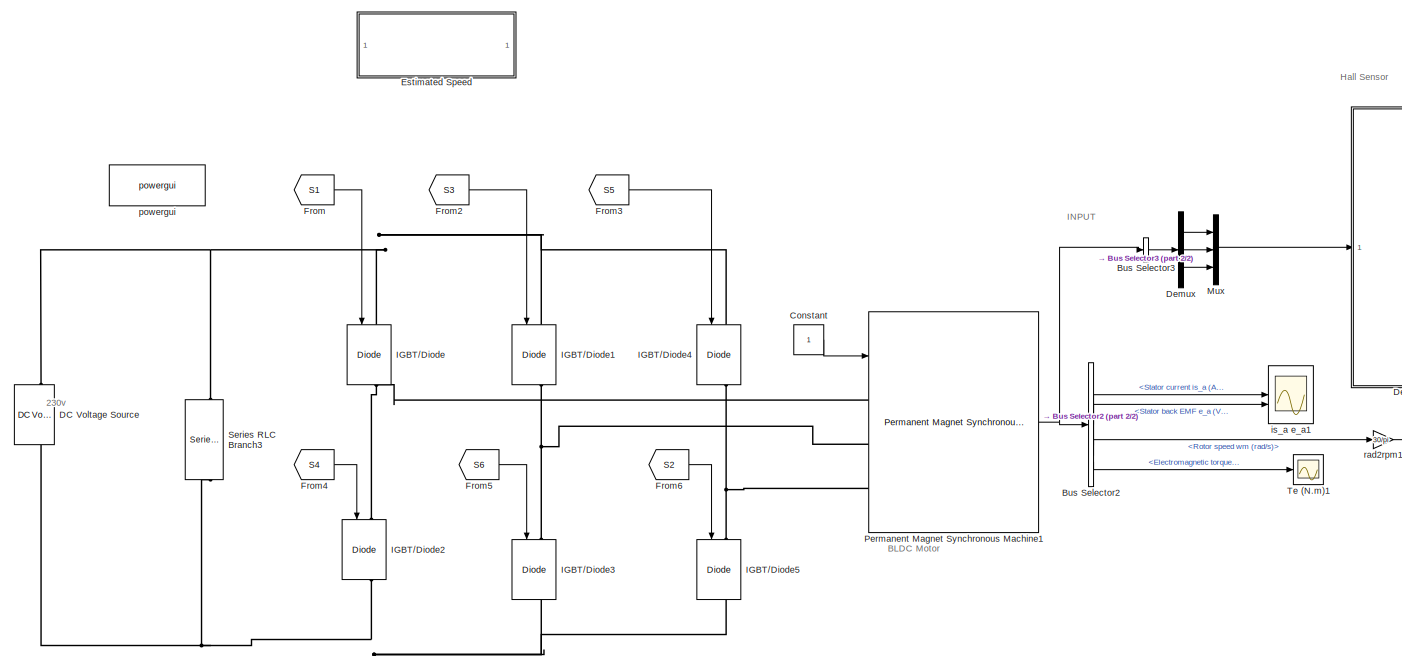
[diagram: root canvas - part 1/2, most of the canvas]
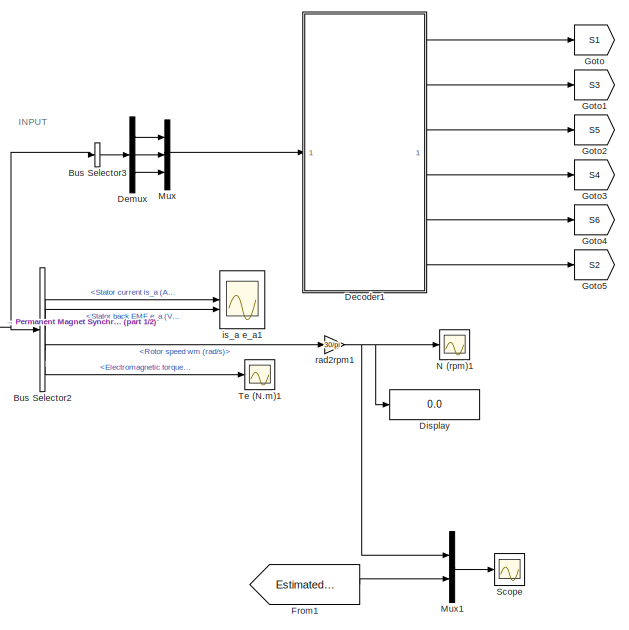
[diagram: root canvas - part 2/2, right side, full height]
MODEL slx_7018c63a93fe
KIND model
CONFIG AbsTol = auto
CONFIG EnableMultiTasking = off
CONFIG FixedStep = auto
CONFIG MaxStep = auto
CONFIG MinStep = auto
CONFIG RelTol = 1e-3
CONFIG SampleTimeConstraint = Unconstrained
CONFIG SolverName = VariableStepAuto
CONFIG StartTime = 0.0
CONFIG StopTime = 1
BLOCK [BusSelector] Bus Selector2
  OutputSignals = Stator current is_a (A),Stator back EMF e_a (V),Rotor speed wm (rad/s),Electromagnetic torque Te (N*m)
BLOCK [BusSelector] Bus Selector3
  OutputAsBus = on
  OutputSignals = Hall effect signal h_a,Hall effect signal h_b,Hall effect signal h_c
BLOCK [Constant] Constant
BLOCK [Reference] DC Voltage Source  REF=spsDCVoltageSourceLib/DC Voltage Source
  LibrarySourceBlock = sps_lib/Sources/DC Voltage Source
  SourceBlock = spsDCVoltageSourceLib/DC Voltage Source
  SourceType = DC Voltage Source
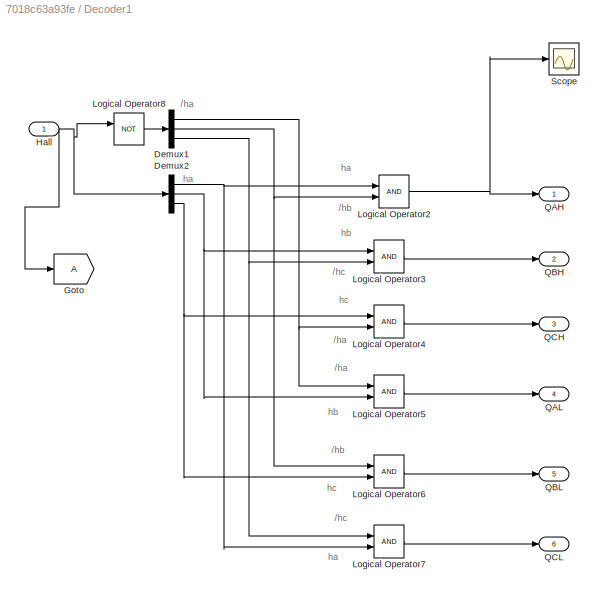
BLOCK [SubSystem] Decoder1
BLOCK [Demux] Decoder1/Demux1
  Outputs = 3
BLOCK [Demux] Decoder1/Demux2
  Outputs = 3
BLOCK [Goto] Decoder1/Goto
  TagVisibility = global
BLOCK [Inport] Decoder1/Hall 
BLOCK [Logic] Decoder1/Logical Operator2
  AllPortsSameDT = off
  OutDataTypeStr = boolean
BLOCK [Logic] Decoder1/Logical Operator3
  AllPortsSameDT = off
  OutDataTypeStr = boolean
BLOCK [Logic] Decoder1/Logical Operator4
  AllPortsSameDT = off
  OutDataTypeStr = boolean
BLOCK [Logic] Decoder1/Logical Operator5
  AllPortsSameDT = off
  OutDataTypeStr = boolean
BLOCK [Logic] Decoder1/Logical Operator6
  AllPortsSameDT = off
  OutDataTypeStr = boolean
BLOCK [Logic] Decoder1/Logical Operator7
  AllPortsSameDT = off
  OutDataTypeStr = boolean
BLOCK [Logic] Decoder1/Logical Operator8
  AllPortsSameDT = off
  Operator = NOT
  OutDataTypeStr = boolean
BLOCK [Outport] Decoder1/QAH
  VectorParamsAs1DForOutWhenUnconnected = off
BLOCK [Outport] Decoder1/QAL
  Port = 4
  VectorParamsAs1DForOutWhenUnconnected = off
BLOCK [Outport] Decoder1/QBH
  Port = 2
  VectorParamsAs1DForOutWhenUnconnected = off
BLOCK [Outport] Decoder1/QBL
  Port = 5
  VectorParamsAs1DForOutWhenUnconnected = off
BLOCK [Outport] Decoder1/QCH
  Port = 3
  VectorParamsAs1DForOutWhenUnconnected = off
BLOCK [Outport] Decoder1/QCL
  Port = 6
  VectorParamsAs1DForOutWhenUnconnected = off
BLOCK [Scope] Decoder1/Scope
  Floating = off
  NumInputPorts = 1
  ScopeSpecificationString = Simulink.scopes.TimeScopeBlockCfg('CurrentConfiguration', extmgr.ConfigurationSet(extmgr.Configuration('Core','General UI',true),extmgr.Configuration('Core','Source UI',true),extmgr.Configuration('Sources','WiredSimulink',true,'DataLoggingVariableName','ScopeData1'),extmgr.Configuration('Visuals','Time Domain',true,'SerializedDisplays',{struct('MinYLimReal','-10.00000','MaxYLimReal','10.00000','YL...<+1428ch>
BLOCK [Demux] Demux
  Outputs = 3
BLOCK [Display] Display
  Decimation = 1
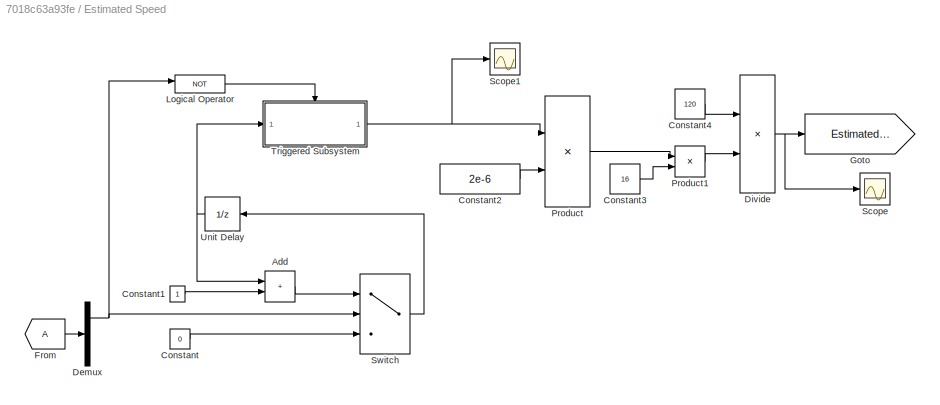
BLOCK [SubSystem] Estimated Speed
BLOCK [Sum] Estimated Speed/Add
  IconShape = rectangular
BLOCK [Constant] Estimated Speed/Constant
  Value = 0
BLOCK [Constant] Estimated Speed/Constant1
BLOCK [Constant] Estimated Speed/Constant2
  Value = 2e-6
BLOCK [Constant] Estimated Speed/Constant3
  Value = 16
BLOCK [Constant] Estimated Speed/Constant4
  Value = 120
BLOCK [Demux] Estimated Speed/Demux
  Outputs = 3
BLOCK [Product] Estimated Speed/Divide
  Inputs = */
BLOCK [From] Estimated Speed/From
  TagVisibility = global
BLOCK [Goto] Estimated Speed/Goto
  GotoTag = Estimated_speed
  TagVisibility = global
BLOCK [Logic] Estimated Speed/Logical Operator
  AllPortsSameDT = off
  Operator = NOT
  OutDataTypeStr = boolean
BLOCK [Product] Estimated Speed/Product
BLOCK [Product] Estimated Speed/Product1
BLOCK [Scope] Estimated Speed/Scope
  Floating = off
  NumInputPorts = 1
  ScopeSpecificationString = Simulink.scopes.TimeScopeBlockCfg('CurrentConfiguration', extmgr.ConfigurationSet(extmgr.Configuration('Core','General UI',true),extmgr.Configuration('Core','Source UI',true),extmgr.Configuration('Sources','WiredSimulink',true,'DataLoggingVariableName','ScopeData2'),extmgr.Configuration('Visuals','Time Domain',true,'SerializedDisplays',{struct('MinYLimReal','975.69615','MaxYLimReal','1009.85734','...<+1454ch>
BLOCK [Scope] Estimated Speed/Scope1
  Floating = off
  NumInputPorts = 1
  ScopeSpecificationString = Simulink.scopes.TimeScopeBlockCfg('CurrentConfiguration', extmgr.ConfigurationSet(extmgr.Configuration('Core','General UI',true),extmgr.Configuration('Core','Source UI',true),extmgr.Configuration('Sources','WiredSimulink',true,'DataLoggingVariableName','ScopeData3'),extmgr.Configuration('Visuals','Time Domain',true,'SerializedDisplays',{struct('MinYLimReal','-478.75','MaxYLimReal','4308.75','YLabe...<+1432ch>
BLOCK [Switch] Estimated Speed/Switch
  Criteria = u2 > Threshold
  InputSameDT = off
  SaturateOnIntegerOverflow = off
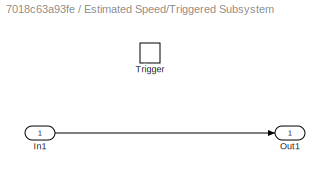
BLOCK [SubSystem] Estimated Speed/Triggered Subsystem
  TreatAsAtomicUnit = on
BLOCK [Inport] Estimated Speed/Triggered Subsystem/In1
BLOCK [Outport] Estimated Speed/Triggered Subsystem/Out1
BLOCK [TriggerPort] Estimated Speed/Triggered Subsystem/Trigger
  StatesWhenEnabling = held
  VariantControl = (inherit)
BLOCK [UnitDelay] Estimated Speed/Unit Delay
  HasFrameUpgradeWarning = on
  NameLocation = top
  SampleTime = -1
BLOCK [From] From
  GotoTag = S1
  TagVisibility = global
BLOCK [From] From1
  GotoTag = Estimated_speed
  TagVisibility = global
BLOCK [From] From2
  GotoTag = S3
  TagVisibility = global
BLOCK [From] From3
  GotoTag = S5
  TagVisibility = global
BLOCK [From] From4
  GotoTag = S4
  TagVisibility = global
BLOCK [From] From5
  GotoTag = S6
  TagVisibility = global
BLOCK [From] From6
  GotoTag = S2
  TagVisibility = global
BLOCK [Goto] Goto
  GotoTag = S1
  TagVisibility = global
BLOCK [Goto] Goto1
  GotoTag = S3
  TagVisibility = global
BLOCK [Goto] Goto2
  GotoTag = S5
  TagVisibility = global
BLOCK [Goto] Goto3
  GotoTag = S4
  TagVisibility = global
BLOCK [Goto] Goto4
  GotoTag = S6
  TagVisibility = global
BLOCK [Goto] Goto5
  GotoTag = S2
  TagVisibility = global
BLOCK [Reference] IGBT//Diode  REF=spsIGBTDiodeLib/IGBT//Diode
  NameLocation = left
  SourceBlock = spsIGBTDiodeLib/IGBT//Diode
  SourceType = IGBT/Diode
BLOCK [Reference] IGBT//Diode1  REF=spsIGBTDiodeLib/IGBT//Diode
  NameLocation = left
  SourceBlock = spsIGBTDiodeLib/IGBT//Diode
  SourceType = IGBT/Diode
BLOCK [Reference] IGBT//Diode2  REF=spsIGBTDiodeLib/IGBT//Diode
  NameLocation = left
  SourceBlock = spsIGBTDiodeLib/IGBT//Diode
  SourceType = IGBT/Diode
BLOCK [Reference] IGBT//Diode3  REF=spsIGBTDiodeLib/IGBT//Diode
  NameLocation = left
  SourceBlock = spsIGBTDiodeLib/IGBT//Diode
  SourceType = IGBT/Diode
BLOCK [Reference] IGBT//Diode4  REF=spsIGBTDiodeLib/IGBT//Diode
  NameLocation = left
  SourceBlock = spsIGBTDiodeLib/IGBT//Diode
  SourceType = IGBT/Diode
BLOCK [Reference] IGBT//Diode5  REF=spsIGBTDiodeLib/IGBT//Diode
  NameLocation = left
  SourceBlock = spsIGBTDiodeLib/IGBT//Diode
  SourceType = IGBT/Diode
BLOCK [Mux] Mux
  DisplayOption = bar
  Inputs = 3
BLOCK [Mux] Mux1
  DisplayOption = bar
  Inputs = 2
BLOCK [Scope] N (rpm)1
  Floating = off
  NameLocation = top
  NumInputPorts = 1
  ScopeSpecificationString = Simulink.scopes.TimeScopeBlockCfg('CurrentConfiguration', extmgr.ConfigurationSet(extmgr.Configuration('Core','General UI',true,'FigureColor',[0.156862745098039 0.156862745098039 0.156862745098039]),extmgr.Configuration('Core','Source UI',true),extmgr.Configuration('Sources','WiredSimulink',true,'DataLogging',true,'DataLoggingVariableName','ScopeData1','DataLoggingSaveFormat','StructureWithTime','...<+3304ch>
BLOCK [Reference] Permanent Magnet Synchronous Machine1  REF=spsPermanentMagnetSynchronousMachineLib/Permanent Magnet
Synchronous Machine
  SourceBlock = spsPermanentMagnetSynchronousMachineLib/Permanent Magnet\nSynchronous Machine
  SourceType = Permanent Magnet Synchronous Machine
BLOCK [Scope] Scope
  Floating = off
  NumInputPorts = 1
  ScopeSpecificationString = Simulink.scopes.TimeScopeBlockCfg('CurrentConfiguration', extmgr.ConfigurationSet(extmgr.Configuration('Core','General UI',true),extmgr.Configuration('Core','Source UI',true),extmgr.Configuration('Sources','WiredSimulink',true,'DataLoggingVariableName','ScopeData1'),extmgr.Configuration('Visuals','Time Domain',true,'SerializedDisplays',{struct('MinYLimReal','1002.50843','MaxYLimReal','1005.31662',...<+1498ch>
BLOCK [Reference] Series RLC Branch3  REF=spsSeriesRLCBranchLib/Series RLC Branch
  NameLocation = left
  SourceBlock = spsSeriesRLCBranchLib/Series RLC Branch
  SourceType = Series RLC Branch
BLOCK [Scope] Te (N.m)1
  Floating = off
  NumInputPorts = 1
  ScopeSpecificationString = Simulink.scopes.TimeScopeBlockCfg('CurrentConfiguration', extmgr.ConfigurationSet(extmgr.Configuration('Core','General UI',true,'FigureColor',[0.156862745098039 0.156862745098039 0.156862745098039]),extmgr.Configuration('Core','Source UI',true),extmgr.Configuration('Sources','WiredSimulink',true,'DataLogging',true,'DataLoggingVariableName','ScopeData4','DataLoggingSaveFormat','StructureWithTime','...<+2930ch>
BLOCK [Scope] is_a e_a1
  Floating = off
  NameLocation = top
  NumInputPorts = 2
  ScopeSpecificationString = Simulink.scopes.TimeScopeBlockCfg('CurrentConfiguration', extmgr.ConfigurationSet(extmgr.Configuration('Core','General UI',true,'FigureColor',[0.156862745098039 0.156862745098039 0.156862745098039]),extmgr.Configuration('Core','Source UI',true),extmgr.Configuration('Sources','WiredSimulink',true,'DataLogging',true,'DataLoggingSaveFormat','StructureWithTime','DataLoggingDecimation','1','DataLogging...<+4633ch>
BLOCK [Reference] powergui  REF=spspowerguiLib/powergui
  Priority = 2
  SourceBlock = spspowerguiLib/powergui
  SourceType = PSB option menu block
BLOCK [Gain] rad2rpm1
  Gain = 30/pi
ANNOTATION (root): 230v
ANNOTATION (root): BLDC Motor
ANNOTATION (root): Hall Sensor
ANNOTATION (root): INPUT
ANNOTATION Decoder1: /ha
ANNOTATION Decoder1: /hb
ANNOTATION Decoder1: /hc
ANNOTATION Decoder1: ha
ANNOTATION Decoder1: hb
ANNOTATION Decoder1: hc
LINE Bus Selector2:1 -> is_a e_a1:1
LINE Bus Selector2:2 -> is_a e_a1:2
LINE Bus Selector2:3 -> rad2rpm1:1
LINE Bus Selector2:4 -> Te (N.m)1:1
LINE Bus Selector3:1 -> Demux:1
LINE Constant:1 -> Permanent Magnet Synchronous Machine1:1
NET Decoder1/Demux1:1 -> Decoder1/Logical Operator4:2, Decoder1/Logical Operator5:1
NET Decoder1/Demux1:2 -> Decoder1/Logical Operator2:2, Decoder1/Logical Operator6:1
NET Decoder1/Demux1:3 -> Decoder1/Logical Operator3:2, Decoder1/Logical Operator7:1
NET Decoder1/Demux2:1 -> Decoder1/Logical Operator2:1, Decoder1/Logical Operator7:2
NET Decoder1/Demux2:2 -> Decoder1/Logical Operator3:1, Decoder1/Logical Operator5:2
NET Decoder1/Demux2:3 -> Decoder1/Logical Operator4:1, Decoder1/Logical Operator6:2
NET Decoder1/Hall :1 -> Decoder1/Demux2:1, Decoder1/Goto:1, Decoder1/Logical Operator8:1
NET Decoder1/Logical Operator2:1 -> Decoder1/QAH:1, Decoder1/Scope:1
LINE Decoder1/Logical Operator3:1 -> Decoder1/QBH:1
LINE Decoder1/Logical Operator4:1 -> Decoder1/QCH:1
LINE Decoder1/Logical Operator5:1 -> Decoder1/QAL:1
LINE Decoder1/Logical Operator6:1 -> Decoder1/QBL:1
LINE Decoder1/Logical Operator7:1 -> Decoder1/QCL:1
LINE Decoder1/Logical Operator8:1 -> Decoder1/Demux1:1
LINE Decoder1:1 -> Goto:1
LINE Decoder1:2 -> Goto1:1
LINE Decoder1:3 -> Goto2:1
LINE Decoder1:4 -> Goto3:1
LINE Decoder1:5 -> Goto4:1
LINE Decoder1:6 -> Goto5:1
LINE Demux:1 -> Mux:1
LINE Demux:2 -> Mux:2
LINE Demux:3 -> Mux:3
LINE Estimated Speed/Add:1 -> Estimated Speed/Switch:1
LINE Estimated Speed/Constant1:1 -> Estimated Speed/Add:2
LINE Estimated Speed/Constant2:1 -> Estimated Speed/Product:2
LINE Estimated Speed/Constant3:1 -> Estimated Speed/Product1:2
LINE Estimated Speed/Constant4:1 -> Estimated Speed/Divide:1
LINE Estimated Speed/Constant:1 -> Estimated Speed/Switch:3
NET Estimated Speed/Demux:1 -> Estimated Speed/Logical Operator:1, Estimated Speed/Switch:2
NET Estimated Speed/Divide:1 -> Estimated Speed/Goto:1, Estimated Speed/Scope:1
LINE Estimated Speed/From:1 -> Estimated Speed/Demux:1
LINE Estimated Speed/Logical Operator:1 -> Estimated Speed/Triggered Subsystem:trigger
LINE Estimated Speed/Product1:1 -> Estimated Speed/Divide:2
LINE Estimated Speed/Product:1 -> Estimated Speed/Product1:1
LINE Estimated Speed/Switch:1 -> Estimated Speed/Unit Delay:1
LINE Estimated Speed/Triggered Subsystem/In1:1 -> Estimated Speed/Triggered Subsystem/Out1:1
NET Estimated Speed/Triggered Subsystem:1 -> Estimated Speed/Product:1, Estimated Speed/Scope1:1
NET Estimated Speed/Unit Delay:1 -> Estimated Speed/Add:1, Estimated Speed/Triggered Subsystem:1
LINE From1:1 -> Mux1:2
LINE From2:1 -> IGBT//Diode1:1
LINE From3:1 -> IGBT//Diode4:1
LINE From4:1 -> IGBT//Diode2:1
LINE From5:1 -> IGBT//Diode3:1
LINE From6:1 -> IGBT//Diode5:1
LINE From:1 -> IGBT//Diode:1
LINE Mux1:1 -> Scope:1
LINE Mux:1 -> Decoder1:1
NET Permanent Magnet Synchronous Machine1:1 -> Bus Selector2:1, Bus Selector3:1
NET rad2rpm1:1 -> Display:1, Mux1:1, N (rpm)1:1
PNET net1: DC Voltage Source:LConn1 -- IGBT//Diode2:RConn1 -- IGBT//Diode3:RConn1 -- IGBT//Diode5:RConn1 -- Series RLC Branch3:RConn1
PNET net2: DC Voltage Source:RConn1 -- IGBT//Diode1:LConn1 -- IGBT//Diode4:LConn1 -- IGBT//Diode:LConn1 -- Series RLC Branch3:LConn1
PNET net3: IGBT//Diode1:RConn1 -- IGBT//Diode3:LConn1 -- Permanent Magnet Synchronous Machine1:LConn2
PNET net4: IGBT//Diode2:LConn1 -- IGBT//Diode:RConn1 -- Permanent Magnet Synchronous Machine1:LConn1
PNET net5: IGBT//Diode4:RConn1 -- IGBT//Diode5:LConn1 -- Permanent Magnet Synchronous Machine1:LConn3
note: NET lines group one-source signal fan-out (src -> all destinations, sorted); 1:1 wires keep LINE; PNET lines group multi-terminal physical nets as a canonical sorted terminal list (undirected conserving connections); 2-terminal nets keep the pairwise PLINE form
